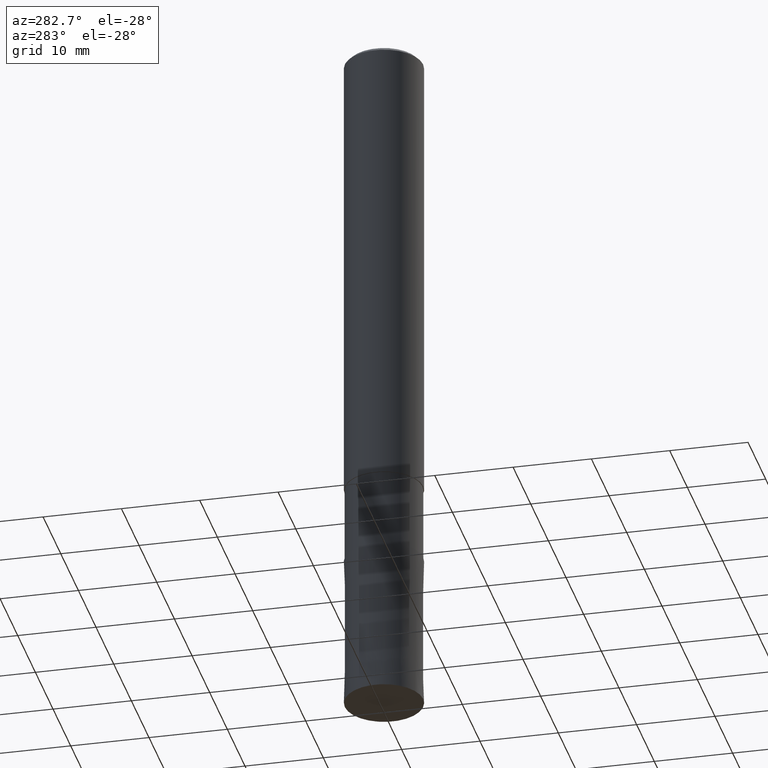
[diagram: clean part render]
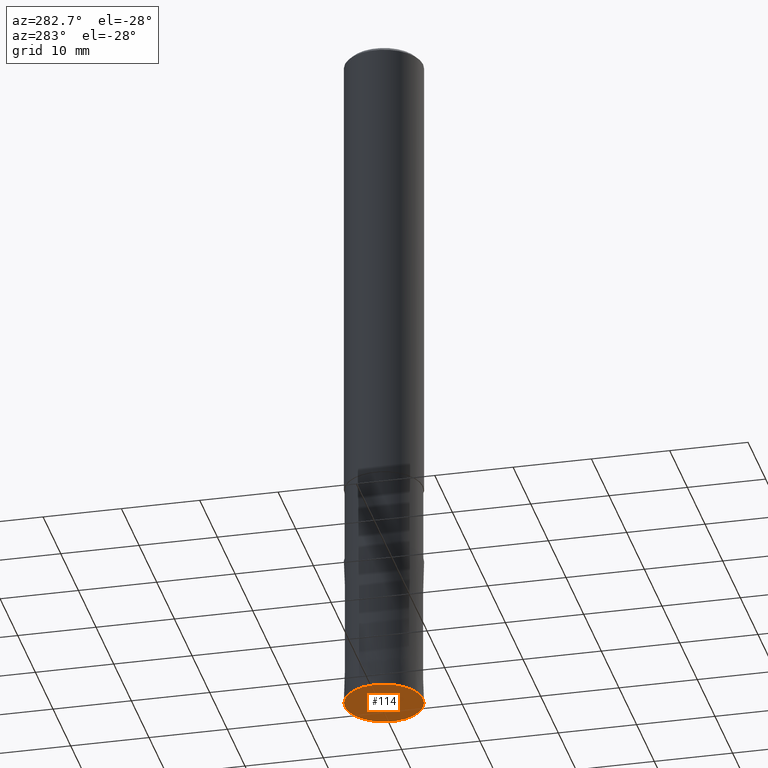
[diagram: same view with one face highlighted and labeled with its STEP entity id]
A machine part, auxiliary view. The second image highlights one B-rep face of the part: STEP entity #114.
In plain terms, the highlighted planar face has unit normal (0, 0, -1).
Its self-contained STEP definition (entity closure, byte-faithful):
#96=VERTEX_POINT('',#217);
#104=EDGE_CURVE('',#176,#96,#226,.T.);
#114=ADVANCED_FACE('',(#236),#237,.T.);
#126=EDGE_CURVE('',#96,#176,#250,.T.);
#176=VERTEX_POINT('',#310);
#217=CARTESIAN_POINT('',(6.12303176911189E-016,-5.0,-90.0));
#226=CIRCLE('',#359,5.0);
#236=FACE_OUTER_BOUND('',#369,.T.);
#237=PLANE('',#370);
#250=CIRCLE('',#387,5.0);
#310=CARTESIAN_POINT('',(0.0,5.0,-90.0));
#359=AXIS2_PLACEMENT_3D('',#494,#495,#496);
#369=EDGE_LOOP('',(#498,#499));
#370=AXIS2_PLACEMENT_3D('',#500,#501,#502);
#387=AXIS2_PLACEMENT_3D('',#520,#521,#522);
#494=CARTESIAN_POINT('',(0.0,0.0,-90.0));
#495=DIRECTION('',(0.0,0.0,-1.0));
#496=DIRECTION('',(0.0,1.0,0.0));
#498=ORIENTED_EDGE('',*,*,#104,.T.);
#499=ORIENTED_EDGE('',*,*,#126,.T.);
#500=CARTESIAN_POINT('',(0.0,2.4975,-90.0));
#501=DIRECTION('',(0.0,0.0,-1.0));
#502=DIRECTION('',(0.0,1.0,0.0));
#520=CARTESIAN_POINT('',(0.0,0.0,-90.0));
#521=DIRECTION('',(0.0,0.0,-1.0));
#522=DIRECTION('',(0.0,1.0,0.0));